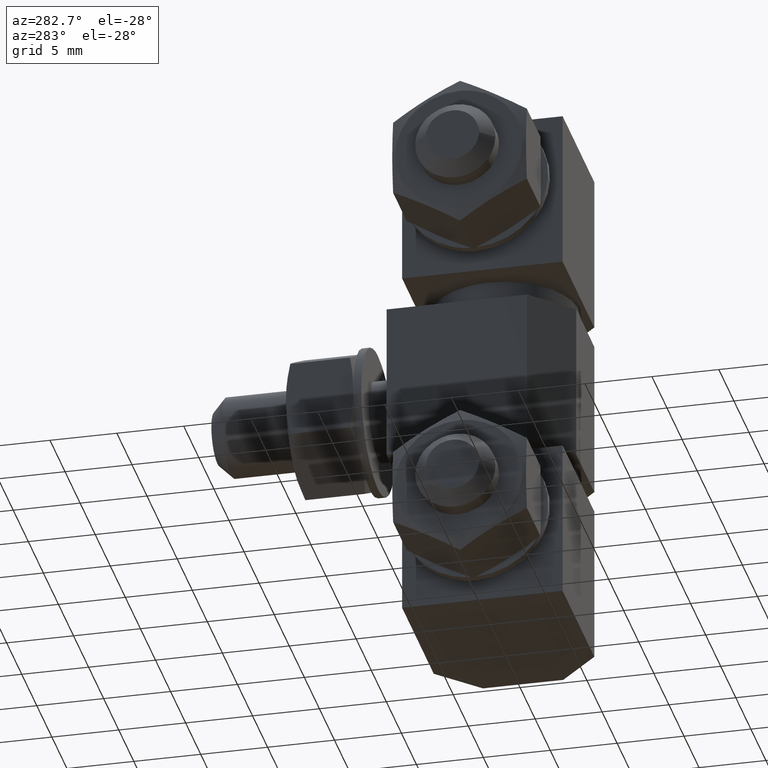
[diagram: clean part render]
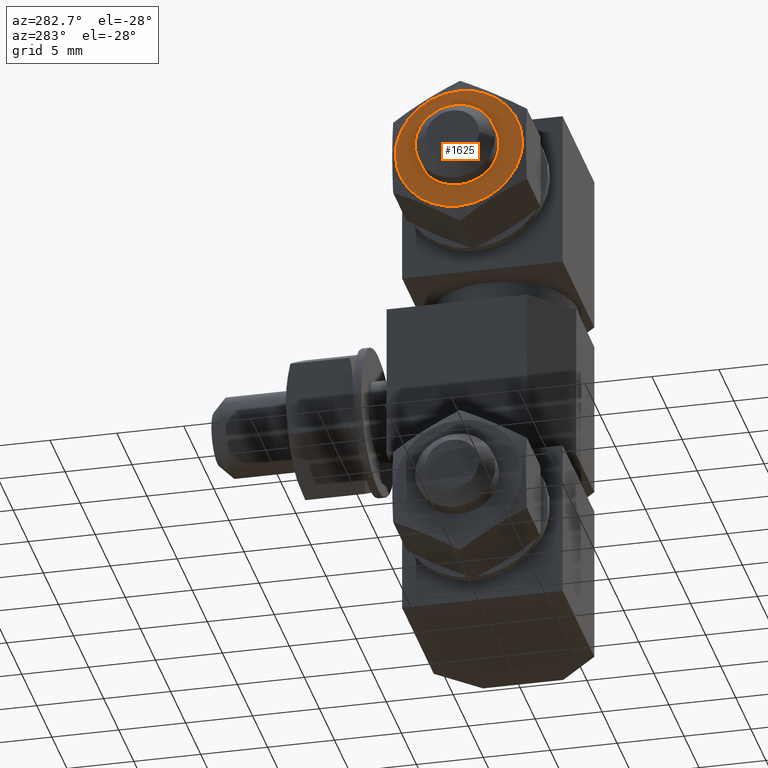
[diagram: same view with one face highlighted and labeled with its STEP entity id]
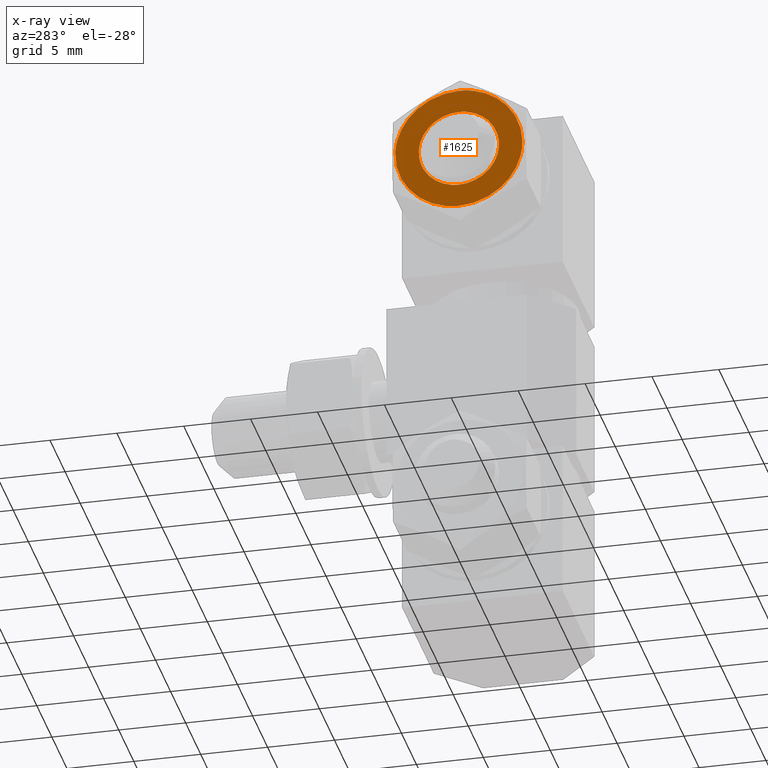
[diagram: x-ray of the same camera — body ghosted, the highlighted face saturated]
A machine part, auxiliary view. The second image highlights one B-rep face of the part: STEP entity #1625.
The next image is the same camera in x-ray: the body ghosted, the highlighted face saturated — about 0% of this face is hidden behind the body in this view.
In plain terms, the highlighted face is a freeform B-spline surface patch.
Its self-contained STEP definition (entity closure, byte-faithful):
#1214=CARTESIAN_POINT('',(-15.300000917445949,0.0,10.750001293250410));
#1215=VERTEX_POINT('',#1214);
#1216=CARTESIAN_POINT('',(-15.300000917437620,4.749562331718003,5.935446153683471));
#1217=VERTEX_POINT('',#1216);
#1218=CARTESIAN_POINT('',(-15.300000917445949,0.0,10.750001293250410));
#1219=CARTESIAN_POINT('',(-15.300000917445951,4.750001008265700,10.750001293250408));
#1220=CARTESIAN_POINT('',(-15.300000917445949,4.750001008265700,6.000000284984710));
#1221=CARTESIAN_POINT('',(-15.300000917445947,4.750001008265700,5.967721728752096));
#1222=CARTESIAN_POINT('',(-15.300000917437620,4.749562331718003,5.935446153683472));
#1230=(BOUNDED_CURVE()B_SPLINE_CURVE(2,(#1218,#1219,#1220,#1221,#1222),.UNSPECIFIED.,.F.,.U.)B_SPLINE_CURVE_WITH_KNOTS((3,2,3),(0.0,0.250000000000000,0.252395822719406),.UNSPECIFIED.)CURVE()GEOMETRIC_REPRESENTATION_ITEM()RATIONAL_B_SPLINE_CURVE((1.0,0.707106781186548,1.0,0.997193119088028,0.994440036488532))REPRESENTATION_ITEM(''));
#1231=EDGE_CURVE('',#1215,#1217,#1230,.T.);
#1233=CARTESIAN_POINT('',(-15.300000917437520,-4.745480157131672,5.792810379306512));
#1234=VERTEX_POINT('',#1233);
#1235=CARTESIAN_POINT('',(-15.300000917437513,-4.745480157131672,5.792810379306512));
#1236=CARTESIAN_POINT('',(-15.300000917445951,-4.750001008265700,5.896356009940463));
#1237=CARTESIAN_POINT('',(-15.300000917445949,-4.750001008265700,6.000000284984710));
#1238=CARTESIAN_POINT('',(-15.300000917445951,-4.750001008265700,10.750001293250408));
#1239=CARTESIAN_POINT('',(-15.300000917445949,0.0,10.750001293250410));
#1247=(BOUNDED_CURVE()B_SPLINE_CURVE(2,(#1235,#1236,#1237,#1238,#1239),.UNSPECIFIED.,.F.,.U.)B_SPLINE_CURVE_WITH_KNOTS((3,2,3),(0.742354620129995,0.750000000000000,1.0),.UNSPECIFIED.)CURVE()GEOMETRIC_REPRESENTATION_ITEM()RATIONAL_B_SPLINE_CURVE((0.982633605306337,0.991042880323290,1.0,0.707106781186548,1.0))REPRESENTATION_ITEM(''));
#1248=EDGE_CURVE('',#1234,#1215,#1247,.T.);
#1341=CARTESIAN_POINT('',(-15.300000917445949,0.0,1.249999276719010));
#1342=VERTEX_POINT('',#1341);
#1343=CARTESIAN_POINT('',(-15.300000917437618,4.749562331718003,5.935446153683471));
#1344=CARTESIAN_POINT('',(-15.300000917445955,4.685879631594843,1.249999276719010));
#1345=CARTESIAN_POINT('',(-15.300000917445949,0.0,1.249999276719010));
#1353=(BOUNDED_CURVE()B_SPLINE_CURVE(2,(#1343,#1344,#1345),.UNSPECIFIED.,.F.,.U.)B_SPLINE_CURVE_WITH_KNOTS((3,3),(0.252395822719406,0.500000000000000),.UNSPECIFIED.)CURVE()GEOMETRIC_REPRESENTATION_ITEM()RATIONAL_B_SPLINE_CURVE((0.994440036488532,0.709913662098520,1.0))REPRESENTATION_ITEM(''));
#1354=EDGE_CURVE('',#1217,#1342,#1353,.T.);
#1410=CARTESIAN_POINT('',(-15.300000917445949,0.0,1.249999276719010));
#1411=CARTESIAN_POINT('',(-15.300000917445949,-4.547138877959613,1.249999276719009));
#1412=CARTESIAN_POINT('',(-15.300000917437513,-4.745480157131673,5.792810379306512));
#1420=(BOUNDED_CURVE()B_SPLINE_CURVE(2,(#1410,#1411,#1412),.UNSPECIFIED.,.F.,.U.)B_SPLINE_CURVE_WITH_KNOTS((3,3),(0.500000000000000,0.742354620129994),.UNSPECIFIED.)CURVE()GEOMETRIC_REPRESENTATION_ITEM()RATIONAL_B_SPLINE_CURVE((1.0,0.716063900863258,0.982633605306336))REPRESENTATION_ITEM(''));
#1421=EDGE_CURVE('',#1342,#1234,#1420,.T.);
#1444=CARTESIAN_POINT('',(-15.300000917446001,0.0,3.000001067637810));
#1445=VERTEX_POINT('',#1444);
#1446=CARTESIAN_POINT('',(-15.300000917446001,-2.990752001196493,5.764623780417544));
#1447=VERTEX_POINT('',#1446);
#1448=CARTESIAN_POINT('',(-15.300000917446001,0.0,3.000001067637810));
#1449=CARTESIAN_POINT('',(-15.300000917445995,-2.773171474906294,3.000001067637811));
#1450=CARTESIAN_POINT('',(-15.300000917446004,-2.990752001196493,5.764623780417545));
#1458=(BOUNDED_CURVE()B_SPLINE_CURVE(2,(#1448,#1449,#1450),.UNSPECIFIED.,.F.,.U.)B_SPLINE_CURVE_WITH_KNOTS((3,3),(0.0,0.236331300628556),.UNSPECIFIED.)CURVE()GEOMETRIC_REPRESENTATION_ITEM()RATIONAL_B_SPLINE_CURVE((1.0,0.723120658610130,0.969723356163028))REPRESENTATION_ITEM(''));
#1459=EDGE_CURVE('',#1445,#1447,#1458,.T.);
#1500=CARTESIAN_POINT('',(-15.300000917446001,2.990752001196492,6.235378354858075));
#1501=VERTEX_POINT('',#1500);
#1507=CARTESIAN_POINT('',(-15.300000917446004,2.990752001196493,6.235378354858075));
#1508=CARTESIAN_POINT('',(-15.300000917446004,3.000000000000000,6.117871388697719));
#1509=CARTESIAN_POINT('',(-15.300000917446001,3.0,6.000001067637810));
#1510=CARTESIAN_POINT('',(-15.300000917446006,3.0,3.000001067637810));
#1511=CARTESIAN_POINT('',(-15.300000917446001,0.0,3.000001067637810));
#1519=(BOUNDED_CURVE()B_SPLINE_CURVE(2,(#1507,#1508,#1509,#1510,#1511),.UNSPECIFIED.,.F.,.U.)B_SPLINE_CURVE_WITH_KNOTS((3,2,3),(0.736331300628556,0.750000000000000,1.0),.UNSPECIFIED.)CURVE()GEOMETRIC_REPRESENTATION_ITEM()RATIONAL_B_SPLINE_CURVE((0.969723356163028,0.983986122576418,1.0,0.707106781186548,1.0))REPRESENTATION_ITEM(''));
#1520=EDGE_CURVE('',#1501,#1445,#1519,.T.);
#1543=CARTESIAN_POINT('',(-15.300000917446001,0.0,9.000001067637809));
#1544=VERTEX_POINT('',#1543);
#1545=CARTESIAN_POINT('',(-15.300000917446004,-2.990752001196493,5.764623780417545));
#1546=CARTESIAN_POINT('',(-15.300000917446004,-3.000000000000000,5.882130746577901));
#1547=CARTESIAN_POINT('',(-15.300000917446001,-3.0,6.000001067637810));
#1548=CARTESIAN_POINT('',(-15.300000917446006,-3.0,9.000001067637809));
#1549=CARTESIAN_POINT('',(-15.300000917446001,0.0,9.000001067637809));
#1557=(BOUNDED_CURVE()B_SPLINE_CURVE(2,(#1545,#1546,#1547,#1548,#1549),.UNSPECIFIED.,.F.,.U.)B_SPLINE_CURVE_WITH_KNOTS((3,2,3),(0.236331300628556,0.250000000000000,0.500000000000000),.UNSPECIFIED.)CURVE()GEOMETRIC_REPRESENTATION_ITEM()RATIONAL_B_SPLINE_CURVE((0.969723356163028,0.983986122576418,1.0,0.707106781186548,1.0))REPRESENTATION_ITEM(''));
#1558=EDGE_CURVE('',#1447,#1544,#1557,.T.);
#1560=CARTESIAN_POINT('',(-15.300000917446001,0.0,9.000001067637809));
#1561=CARTESIAN_POINT('',(-15.300000917446008,2.773171474906293,9.000001067637809));
#1562=CARTESIAN_POINT('',(-15.300000917445997,2.990752001196492,6.235378354858075));
#1570=(BOUNDED_CURVE()B_SPLINE_CURVE(2,(#1560,#1561,#1562),.UNSPECIFIED.,.F.,.U.)B_SPLINE_CURVE_WITH_KNOTS((3,3),(0.500000000000000,0.736331300628556),.UNSPECIFIED.)CURVE()GEOMETRIC_REPRESENTATION_ITEM()RATIONAL_B_SPLINE_CURVE((1.0,0.723120658610130,0.969723356163028))REPRESENTATION_ITEM(''));
#1571=EDGE_CURVE('',#1544,#1501,#1570,.T.);
#1608=CARTESIAN_POINT('',(-15.300000917445949,5.224053159430879,11.224526018846420));
#1609=CARTESIAN_POINT('',(-15.300000917445949,-5.224245455976670,11.224526018846420));
#1610=CARTESIAN_POINT('',(-15.300000917445949,5.224053159430879,0.775473956566543));
#1611=CARTESIAN_POINT('',(-15.300000917445949,-5.224245455976670,0.775473956566543));
#1612=B_SPLINE_SURFACE_WITH_KNOTS('',1,1,((#1608,#1610),(#1609,#1611)),.UNSPECIFIED.,.F.,.F.,.U.,(2,2),(2,2),(0.0,10.448298615407550),(0.0,10.449052062279870),.UNSPECIFIED.);
#1613=ORIENTED_EDGE('',*,*,#1231,.T.);
#1614=ORIENTED_EDGE('',*,*,#1354,.T.);
#1615=ORIENTED_EDGE('',*,*,#1421,.T.);
#1616=ORIENTED_EDGE('',*,*,#1248,.T.);
#1617=EDGE_LOOP('',(#1613,#1614,#1615,#1616));
#1618=FACE_OUTER_BOUND('',#1617,.T.);
#1619=ORIENTED_EDGE('',*,*,#1571,.F.);
#1620=ORIENTED_EDGE('',*,*,#1558,.F.);
#1621=ORIENTED_EDGE('',*,*,#1459,.F.);
#1622=ORIENTED_EDGE('',*,*,#1520,.F.);
#1623=EDGE_LOOP('',(#1619,#1620,#1621,#1622));
#1624=FACE_BOUND('',#1623,.T.);
#1625=ADVANCED_FACE('',(#1618,#1624),#1612,.F.);